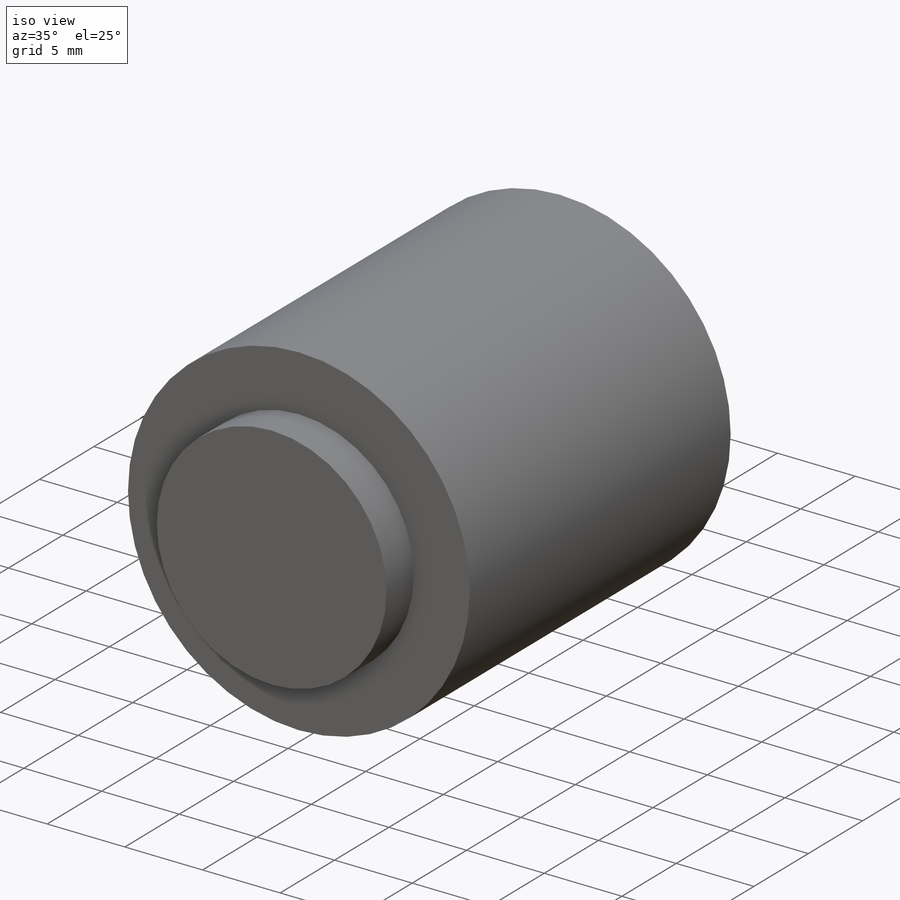
[diagram: iso view]
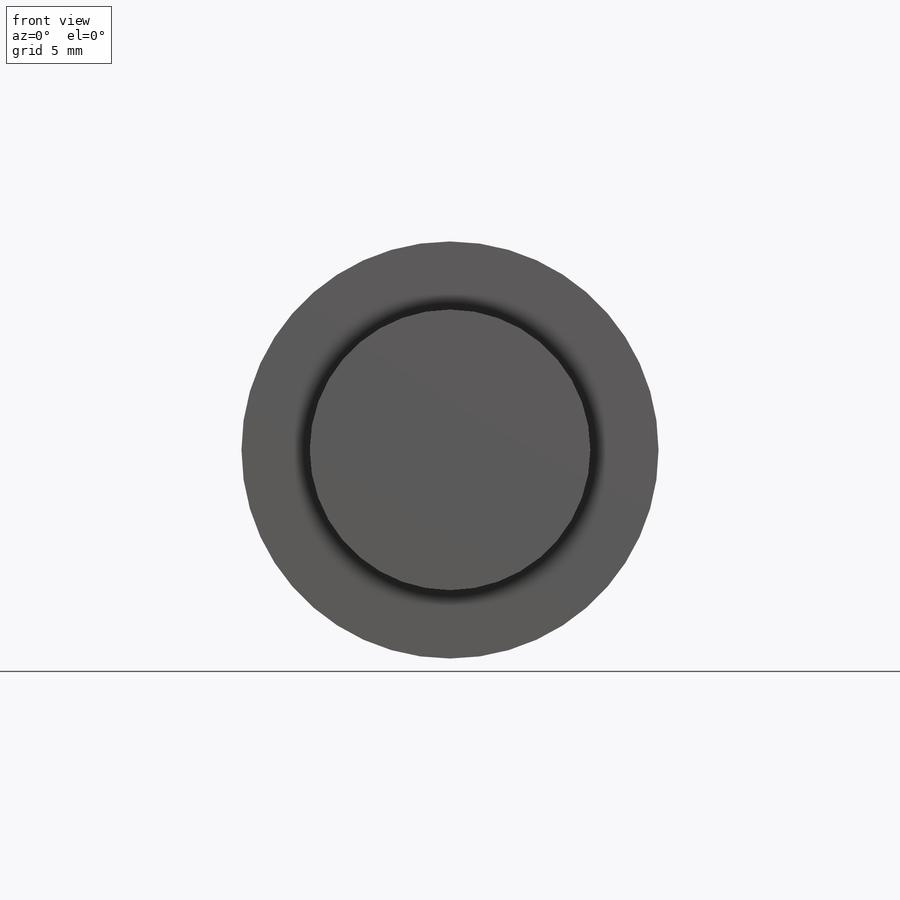
[diagram: front view]
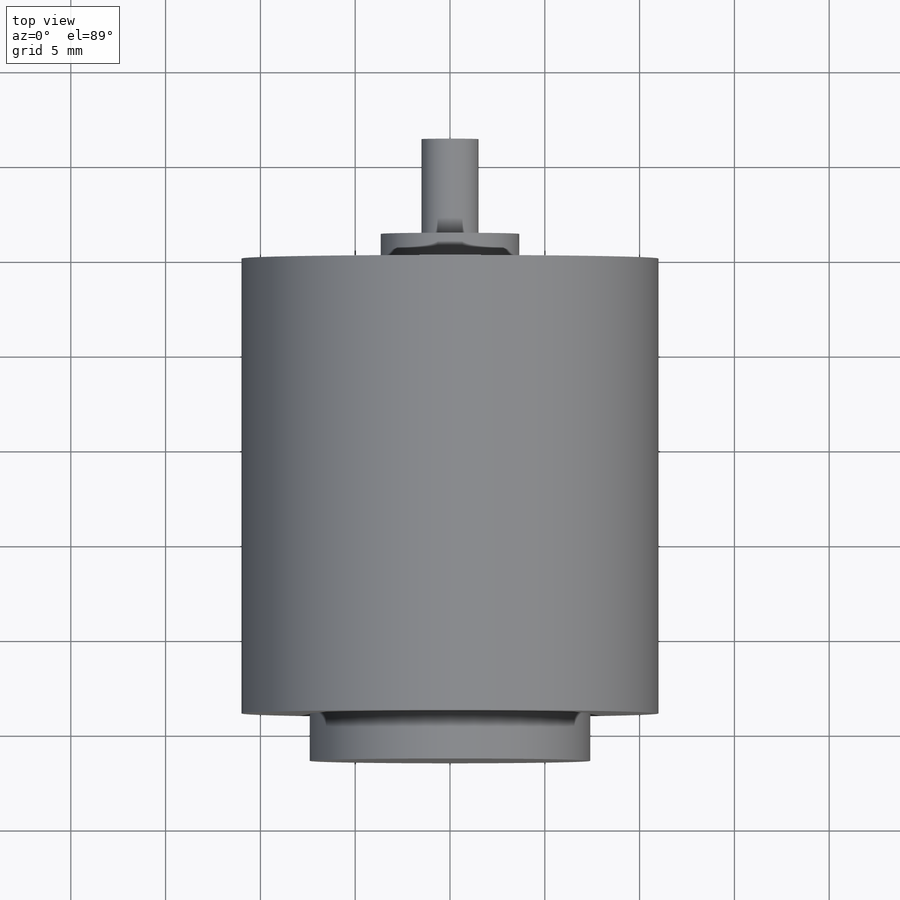
[diagram: top view]
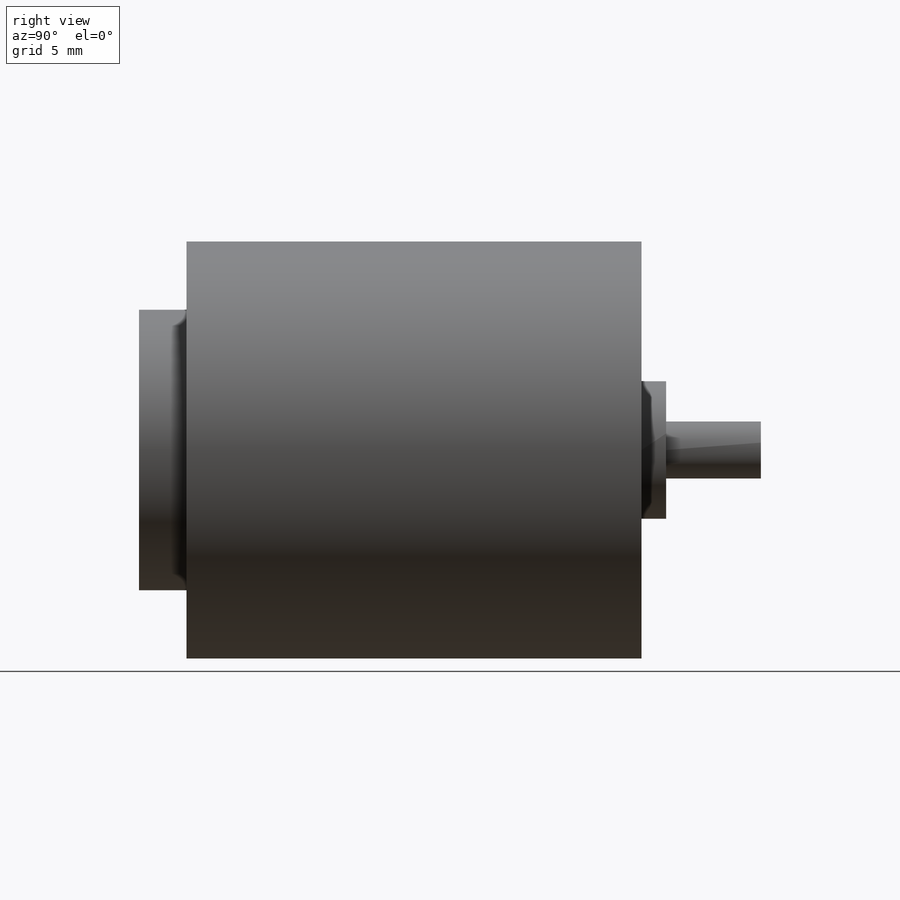
[diagram: right view]
SOLIDWORKS PART (.sldprt)
format: sldprt  version: not decoded by parser v0  size: 166,912 bytes
history: native  units: mm
features: sketch x4, extrude x4, material x1 (+16 scaffold rows collapsed)
feature tree (25):
  scaffold x16  (default folders/planes/origin — collapsed)
  material  "Material <not specified>"
  sketch  "Sketch1"  dims[D1=22.0mm]
  extrude  "Extrude1"  Depth=24mm
  sketch  "Sketch2"  dims[D1=14.8mm]
  extrude  "Extrude3"  Depth=2.5mm
  sketch  "Sketch3"  dims[D1=7.3mm]
  extrude  "Extrude4"  Depth=1.3mm
  sketch  "Sketch4"  dims[D1=3.0mm]
  extrude  "Extrude5"  Depth=5mm
decode coverage: 8 of 8 modeling features carry decoded parameters
note: suppression state not decoded; provenance and decode notes live in map.json
